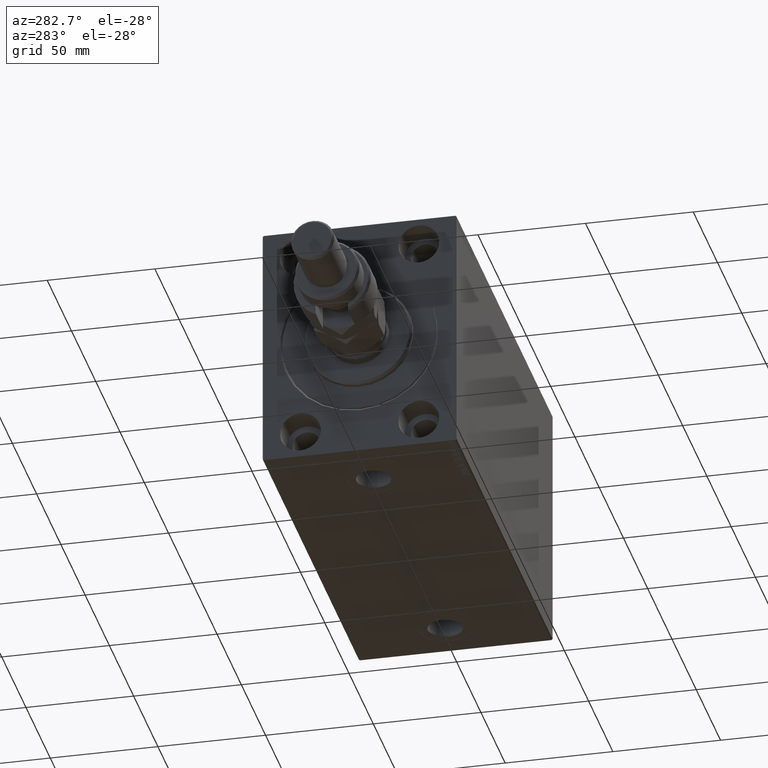
[diagram: clean part render]
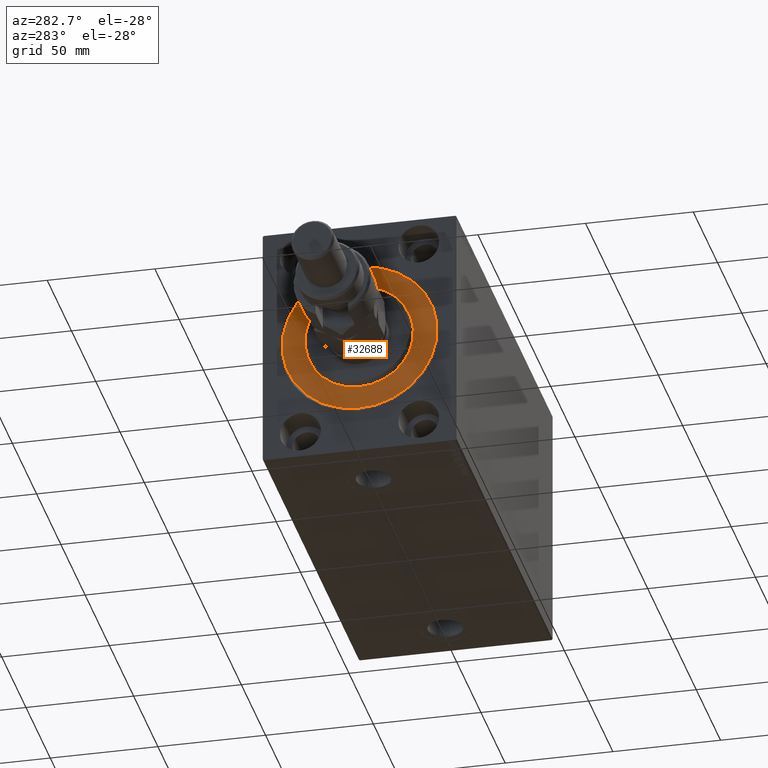
[diagram: same view with one face highlighted and labeled with its STEP entity id]
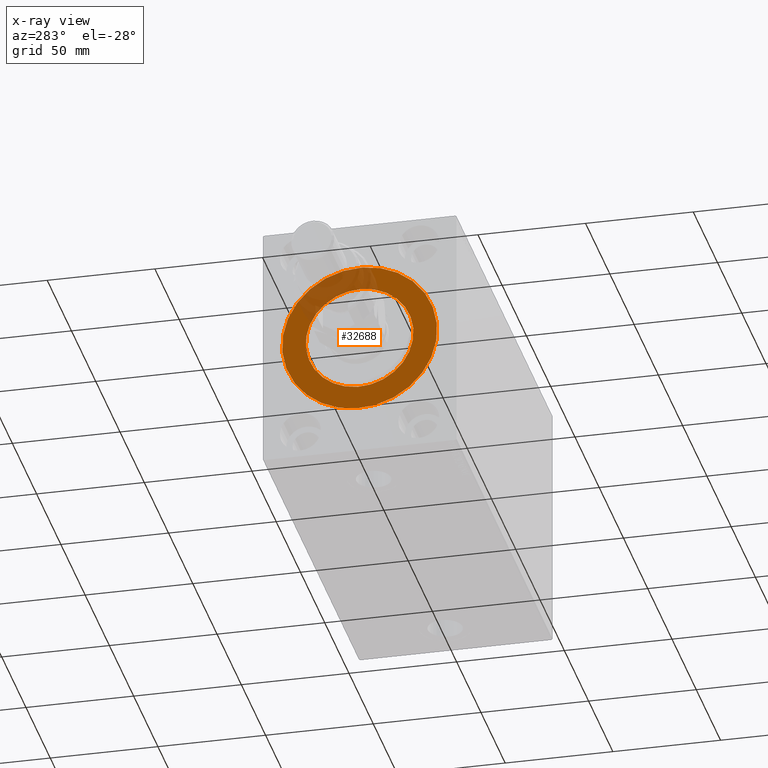
[diagram: x-ray of the same camera — body ghosted, the highlighted face saturated]
A machine part, auxiliary view. The second image highlights one B-rep face of the part: STEP entity #32688.
The next image is the same camera in x-ray: the body ghosted, the highlighted face saturated — about 20% of this face is hidden behind the body in this view.
In plain terms, the highlighted planar face has unit normal (1, 0, -0).
Its self-contained STEP definition (entity closure, byte-faithful):
#534 = ORIENTED_EDGE ( 'NONE', *, *, #46711, .F. ) ;
#1109 = FACE_OUTER_BOUND ( 'NONE', #44611, .T. ) ;
#1428 = CIRCLE ( 'NONE', #21641, 25.00000000000000000 ) ;
#2274 = EDGE_CURVE ( 'NONE', #23183, #10535, #1428, .T. ) ;
#2403 = CARTESIAN_POINT ( 'NONE',  ( 0.000000000000000000, 4.408728476930470856E-15, 36.00000000000000000 ) ) ;
#5261 = FACE_BOUND ( 'NONE', #25525, .T. ) ;
#6243 = VERTEX_POINT ( 'NONE', #15675 ) ;
#7292 = DIRECTION ( 'NONE',  ( 1.000000000000000000, -0.000000000000000000, 0.000000000000000000 ) ) ;
#10102 = CARTESIAN_POINT ( 'NONE',  ( 0.000000000000000000, 3.061616997868383043E-15, -25.00000000000000000 ) ) ;
#10535 = VERTEX_POINT ( 'NONE', #10102 ) ;
#12665 = DIRECTION ( 'NONE',  ( -1.000000000000000000, 0.000000000000000000, 0.000000000000000000 ) ) ;
#12907 = CARTESIAN_POINT ( 'NONE',  ( 0.000000000000000000, 0.000000000000000000, 0.000000000000000000 ) ) ;
#13384 = AXIS2_PLACEMENT_3D ( 'NONE', #24426, #31506, #20311 ) ;
#14129 = DIRECTION ( 'NONE',  ( 0.000000000000000000, 0.000000000000000000, -1.000000000000000000 ) ) ;
#15675 = CARTESIAN_POINT ( 'NONE',  ( 0.000000000000000000, 0.000000000000000000, -36.00000000000000000 ) ) ;
#15982 = DIRECTION ( 'NONE',  ( -1.000000000000000000, 0.000000000000000000, 0.000000000000000000 ) ) ;
#16485 = DIRECTION ( 'NONE',  ( 0.000000000000000000, 0.000000000000000000, 1.000000000000000000 ) ) ;
#18149 = DIRECTION ( 'NONE',  ( 0.000000000000000000, 0.000000000000000000, -1.000000000000000000 ) ) ;
#18351 = CARTESIAN_POINT ( 'NONE',  ( 0.000000000000000000, 0.000000000000000000, 25.00000000000000000 ) ) ;
#19390 = EDGE_CURVE ( 'NONE', #6243, #42779, #38266, .T. ) ;
#20135 = CARTESIAN_POINT ( 'NONE',  ( 0.000000000000000000, 0.000000000000000000, 0.000000000000000000 ) ) ;
#20311 = DIRECTION ( 'NONE',  ( 0.000000000000000000, 0.000000000000000000, 1.000000000000000000 ) ) ;
#21626 = ORIENTED_EDGE ( 'NONE', *, *, #43514, .F. ) ;
#21641 = AXIS2_PLACEMENT_3D ( 'NONE', #39832, #43721, #18149 ) ;
#23183 = VERTEX_POINT ( 'NONE', #18351 ) ;
#24426 = CARTESIAN_POINT ( 'NONE',  ( 0.000000000000000000, 0.000000000000000000, 0.000000000000000000 ) ) ;
#25525 = EDGE_LOOP ( 'NONE', ( #45735, #534 ) ) ;
#25814 = CARTESIAN_POINT ( 'NONE',  ( 0.000000000000000000, 0.000000000000000000, 0.000000000000000000 ) ) ;
#31506 = DIRECTION ( 'NONE',  ( -1.000000000000000000, 0.000000000000000000, 0.000000000000000000 ) ) ;
#32688 = ADVANCED_FACE ( 'NONE', ( #5261, #1109 ), #34747, .F. ) ;
#34121 = AXIS2_PLACEMENT_3D ( 'NONE', #12907, #12665, #34599 ) ;
#34321 = ORIENTED_EDGE ( 'NONE', *, *, #19390, .F. ) ;
#34599 = DIRECTION ( 'NONE',  ( 0.000000000000000000, 0.000000000000000000, 1.000000000000000000 ) ) ;
#34747 = PLANE ( 'NONE',  #38584 ) ;
#38266 = CIRCLE ( 'NONE', #13384, 36.00000000000000000 ) ;
#38584 = AXIS2_PLACEMENT_3D ( 'NONE', #20135, #15982, #16485 ) ;
#39576 = CIRCLE ( 'NONE', #34121, 36.00000000000000000 ) ;
#39832 = CARTESIAN_POINT ( 'NONE',  ( 0.000000000000000000, 0.000000000000000000, 0.000000000000000000 ) ) ;
#41323 = CIRCLE ( 'NONE', #45210, 25.00000000000000000 ) ;
#42779 = VERTEX_POINT ( 'NONE', #2403 ) ;
#43514 = EDGE_CURVE ( 'NONE', #42779, #6243, #39576, .T. ) ;
#43721 = DIRECTION ( 'NONE',  ( 1.000000000000000000, -0.000000000000000000, 0.000000000000000000 ) ) ;
#44611 = EDGE_LOOP ( 'NONE', ( #34321, #21626 ) ) ;
#45210 = AXIS2_PLACEMENT_3D ( 'NONE', #25814, #7292, #14129 ) ;
#45735 = ORIENTED_EDGE ( 'NONE', *, *, #2274, .F. ) ;
#46711 = EDGE_CURVE ( 'NONE', #10535, #23183, #41323, .T. ) ;